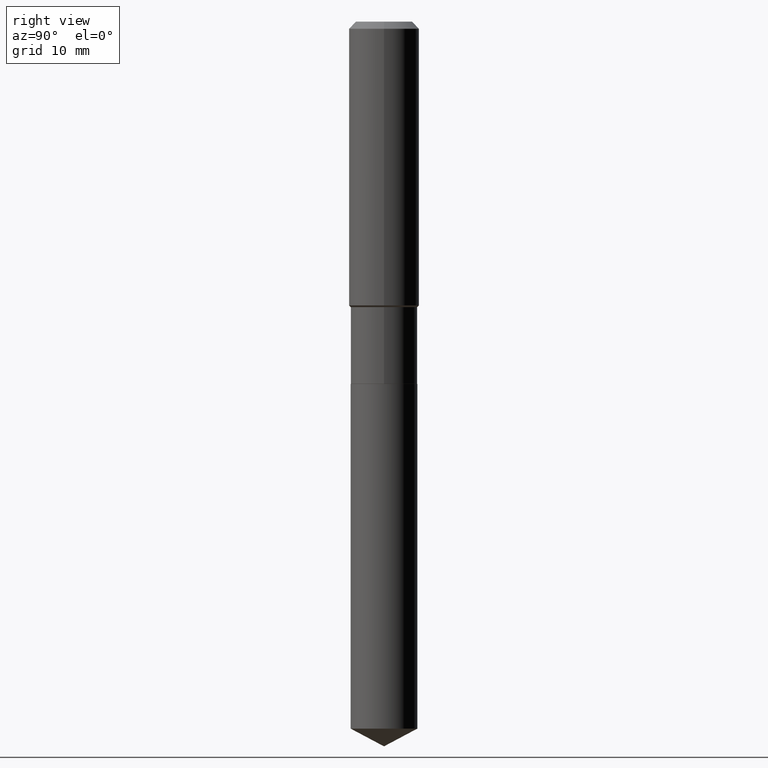
[diagram: clean part render]
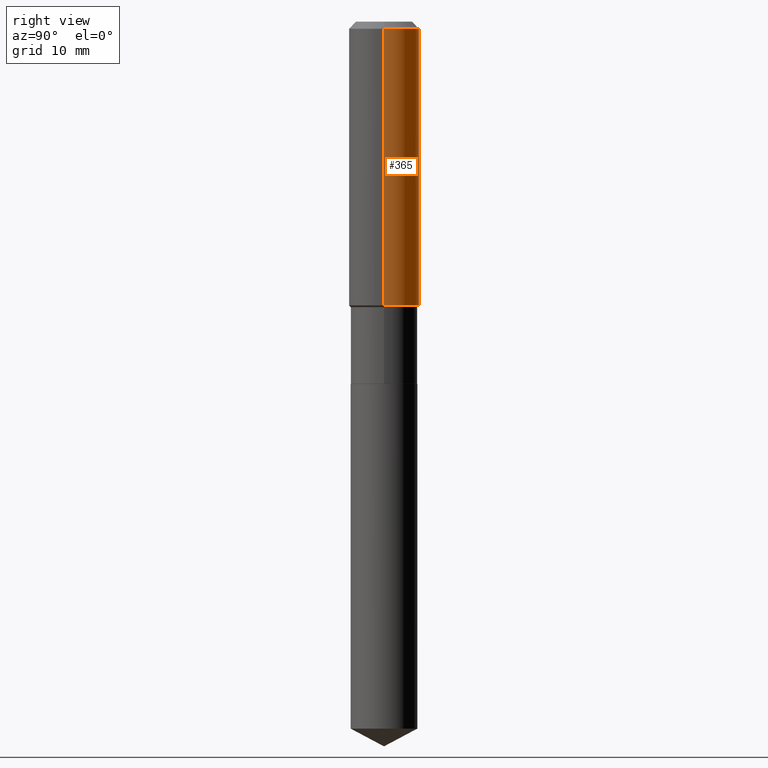
[diagram: same view with one face highlighted and labeled with its STEP entity id]
A machine part, right view. The second image highlights one B-rep face of the part: STEP entity #365.
In plain terms, the highlighted cylindrical surface (edge-blend (fillet) strip) has radius 5 mm, axis along (-0, 0, 1).
Its self-contained STEP definition (entity closure, byte-faithful):
#25 = CARTESIAN_POINT ( 'NONE',  ( 0.1968500000000000250, -1.512055823412797189E-15, -0.03937000000000029365 ) ) ;
#53 = ORIENTED_EDGE ( 'NONE', *, *, #449, .F. ) ;
#60 = FACE_OUTER_BOUND ( 'NONE', #456, .T. ) ;
#63 = CARTESIAN_POINT ( 'NONE',  ( 0.000000000000000000, 0.000000000000000000, 0.000000000000000000 ) ) ;
#70 = VECTOR ( 'NONE', #488, 39.37007874015748143 ) ;
#90 = CARTESIAN_POINT ( 'NONE',  ( 9.627810689950954155E-31, -1.374596203102556547E-16, -0.03937000000000029365 ) ) ;
#149 = VECTOR ( 'NONE', #248, 39.37007874015748143 ) ;
#151 = CARTESIAN_POINT ( 'NONE',  ( -0.1968500000000002192, -4.144197824136677102E-15, -1.587549999999999795 ) ) ;
#188 = VERTEX_POINT ( 'NONE', #151 ) ;
#202 = CYLINDRICAL_SURFACE ( 'NONE', #374, 0.1968500000000001082 ) ;
#208 = EDGE_CURVE ( 'NONE', #343, #338, #240, .T. ) ;
#225 = AXIS2_PLACEMENT_3D ( 'NONE', #310, #298, #262 ) ;
#235 = DIRECTION ( 'NONE',  ( 1.000000000000000000, -6.982962677686265922E-15, 0.000000000000000000 ) ) ;
#240 = CIRCLE ( 'NONE', #251, 0.1968500000000000250 ) ;
#242 = LINE ( 'NONE', #443, #70 ) ;
#248 = DIRECTION ( 'NONE',  ( -2.445468806185136877E-29, 3.491481338843145188E-15, 1.000000000000000000 ) ) ;
#251 = AXIS2_PLACEMENT_3D ( 'NONE', #90, #464, #235 ) ;
#261 = ORIENTED_EDGE ( 'NONE', *, *, #404, .T. ) ;
#262 = DIRECTION ( 'NONE',  ( 1.000000000000000000, -6.982962677686265922E-15, 0.000000000000000000 ) ) ;
#273 = EDGE_CURVE ( 'NONE', #467, #188, #396, .T. ) ;
#294 = ORIENTED_EDGE ( 'NONE', *, *, #208, .F. ) ;
#298 = DIRECTION ( 'NONE',  ( -2.445468806185136597E-29, 3.491481338843145583E-15, 1.000000000000000000 ) ) ;
#310 = CARTESIAN_POINT ( 'NONE',  ( 3.882304003259213067E-29, -5.542901199480434890E-15, -1.587549999999999795 ) ) ;
#316 = LINE ( 'NONE', #481, #149 ) ;
#317 = DIRECTION ( 'NONE',  ( -2.445468806185136597E-29, 3.491481338843145583E-15, 1.000000000000000000 ) ) ;
#324 = CARTESIAN_POINT ( 'NONE',  ( 0.1968500000000002192, -6.917497402582978865E-15, -1.587549999999999795 ) ) ;
#338 = VERTEX_POINT ( 'NONE', #361 ) ;
#343 = VERTEX_POINT ( 'NONE', #25 ) ;
#361 = CARTESIAN_POINT ( 'NONE',  ( -0.1968500000000000250, -1.441477034551586856E-15, -0.03937000000000029365 ) ) ;
#365 = ADVANCED_FACE ( 'NONE', ( #60 ), #202, .T. ) ;
#374 = AXIS2_PLACEMENT_3D ( 'NONE', #63, #317, #408 ) ;
#396 = CIRCLE ( 'NONE', #225, 0.1968500000000002192 ) ;
#404 = EDGE_CURVE ( 'NONE', #188, #338, #242, .T. ) ;
#408 = DIRECTION ( 'NONE',  ( 1.000000000000000000, -6.982962677686266711E-15, 4.876176775795935793E-29 ) ) ;
#443 = CARTESIAN_POINT ( 'NONE',  ( -0.1968500000000001082, 1.398703375343757985E-15, -9.682923725166787881E-30 ) ) ;
#449 = EDGE_CURVE ( 'NONE', #467, #343, #316, .T. ) ;
#456 = EDGE_LOOP ( 'NONE', ( #479, #261, #294, #53 ) ) ;
#464 = DIRECTION ( 'NONE',  ( -2.445468806185136597E-29, 3.491481338843145583E-15, 1.000000000000000000 ) ) ;
#467 = VERTEX_POINT ( 'NONE', #324 ) ;
#479 = ORIENTED_EDGE ( 'NONE', *, *, #273, .T. ) ;
#481 = CARTESIAN_POINT ( 'NONE',  ( 0.1968500000000001082, -1.374596203102542397E-15, 9.598753983154305062E-30 ) ) ;
#488 = DIRECTION ( 'NONE',  ( -2.445468806185136877E-29, 3.491481338843145188E-15, 1.000000000000000000 ) ) ;